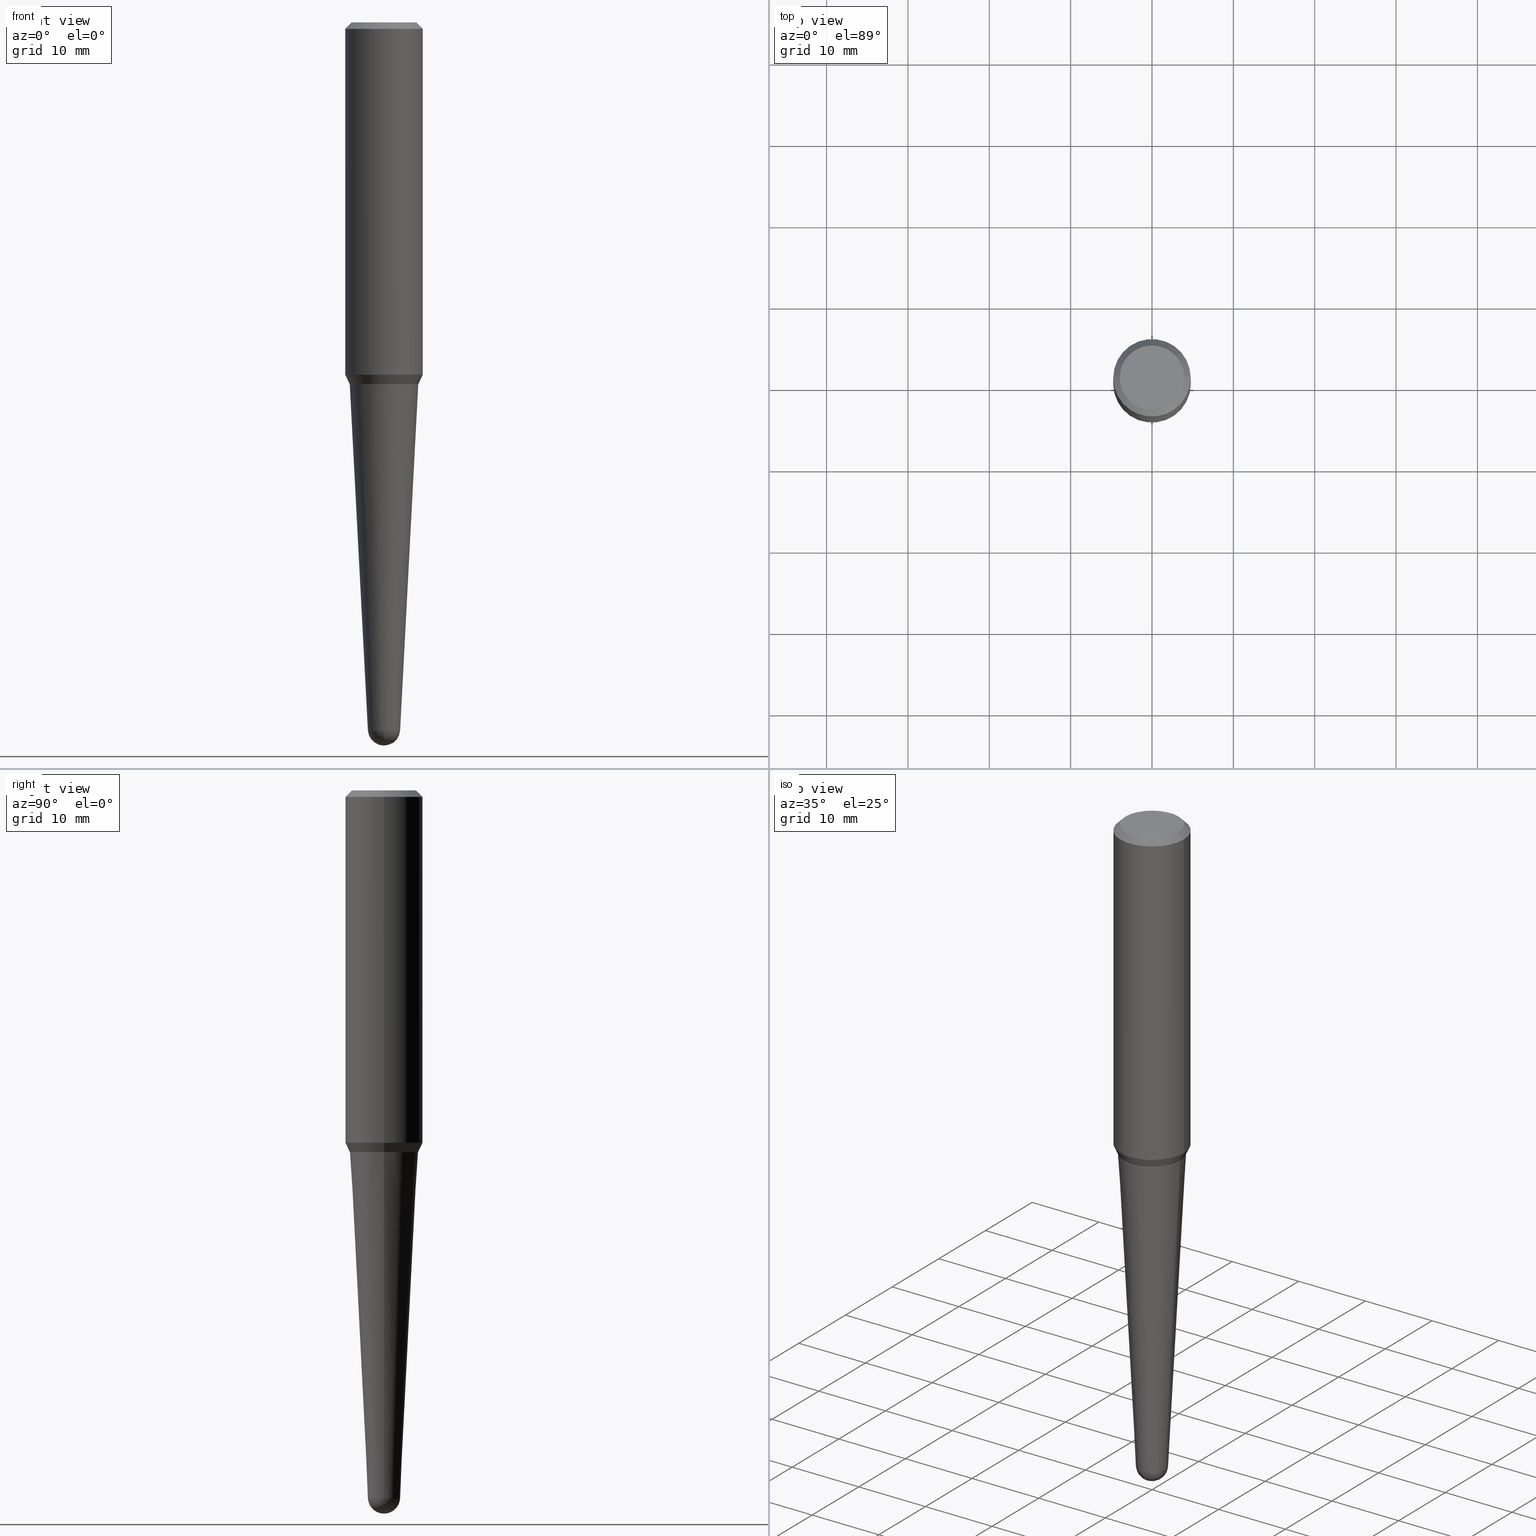
[diagram: canonical four-view strip — front | top / right | iso, engineering-drawing reading convention]
A machine part, canonical four-view strip (front | top / right | iso — engineering-drawing reading convention). The complete STEP part file that produces these views, byte-faithful:
ISO-10303-21;
HEADER;
FILE_DESCRIPTION (( 'STEP AP203' ),
    '1' );
FILE_NAME ('32422.STEP',
    '2024-03-04T15:23:26',
    ( '' ),
    ( '' ),
    'SwSTEP 2.0',
    'SolidWorks 2023',
    '' );
FILE_SCHEMA (( 'CONFIG_CONTROL_DESIGN' ));
ENDSEC;

DATA;
#1 = PLANE ( 'NONE',  #179 ) ;
#2 = CARTESIAN_POINT ( 'NONE',  ( 0.1874999999999999722, -1.395452166421010480E-15, -0.03125000000000003469 ) ) ;
#3 = AXIS2_PLACEMENT_3D ( 'NONE', #428, #66, #164 ) ;
#4 = CC_DESIGN_APPROVAL ( #336, ( #386 ) ) ;
#5 = CARTESIAN_POINT ( 'NONE',  ( 5.446219753391475755E-16, 0.07799296666432065095, -3.425987438182573896 ) ) ;
#6 = EDGE_CURVE ( 'NONE', #424, #311, #48, .T. ) ;
#7 = DIRECTION ( 'NONE',  ( 0.000000000000000000, 0.000000000000000000, 1.000000000000000000 ) ) ;
#8 = APPROVAL_ROLE ( '' ) ;
#9 = APPROVAL_STATUS ( 'not_yet_approved' ) ;
#10 = CONICAL_SURFACE ( 'NONE', #127, 0.1874999999999999722, 0.7853981633974502774 ) ;
#11 = COORDINATED_UNIVERSAL_TIME_OFFSET ( 5, 0, .BEHIND. ) ;
#12 = EDGE_CURVE ( 'NONE', #244, #202, #380, .T. ) ;
#13 = SHAPE_DEFINITION_REPRESENTATION ( #338, #21 ) ;
#14 = ADVANCED_FACE ( 'NONE', ( #192 ), #117, .F. ) ;
#15 = CARTESIAN_POINT ( 'NONE',  ( 4.278347676420896243E-29, -6.108346602306083167E-15, -1.749500000000000055 ) ) ;
#16 = ORIENTED_EDGE ( 'NONE', *, *, #79, .F. ) ;
#17 = EDGE_LOOP ( 'NONE', ( #56, #87, #241, #278 ) ) ;
#18 = EDGE_CURVE ( 'NONE', #202, #188, #358, .T. ) ;
#19 = DIRECTION ( 'NONE',  ( 2.438088387897960049E-29, -3.491481338843145188E-15, -1.000000000000000000 ) ) ;
#20 = PERSON_AND_ORGANIZATION_ROLE ( 'classification_officer' ) ;
#21 = ADVANCED_BREP_SHAPE_REPRESENTATION ( '32422', ( #305, #131, #133 ), #78 ) ;
#22 = DIRECTION ( 'NONE',  ( 1.000000000000000000, -6.982962677686266711E-15, 0.000000000000000000 ) ) ;
#23 = VERTEX_POINT ( 'NONE', #306 ) ;
#24 = EDGE_LOOP ( 'NONE', ( #384, #426, #211, #432 ) ) ;
#25 = SPHERICAL_SURFACE ( 'NONE', #55, 0.07809999999999994724 ) ;
#26 = VERTEX_POINT ( 'NONE', #263 ) ;
#27 = FACE_OUTER_BOUND ( 'NONE', #324, .T. ) ;
#28 = CONICAL_SURFACE ( 'NONE', #70, 0.1668277464057542070, 0.4363323129985716697 ) ;
#29 = EDGE_CURVE ( 'NONE', #394, #32, #147, .T. ) ;
#30 = CARTESIAN_POINT ( 'NONE',  ( -0.1658277464057546224, -4.931815337014735557E-15, -1.750000000000000000 ) ) ;
#31 = FACE_OUTER_BOUND ( 'NONE', #239, .T. ) ;
#32 = VERTEX_POINT ( 'NONE', #421 ) ;
#33 = DIRECTION ( 'NONE',  ( -2.445468806185136597E-29, 3.491481338843145583E-15, 1.000000000000000000 ) ) ;
#34 = CARTESIAN_POINT ( 'NONE',  ( -0.1663277464057547061, -4.928262623335932292E-15, -1.749999999999999556 ) ) ;
#35 = DIRECTION ( 'NONE',  ( 1.000000000000000000, -6.982962677686265922E-15, 4.876176775795935793E-29 ) ) ;
#36 = ADVANCED_FACE ( 'NONE', ( #237 ), #83, .T. ) ;
#37 = CIRCLE ( 'NONE', #116, 0.1562500000000004718 ) ;
#38 = DIRECTION ( 'NONE',  ( -2.445468806185136597E-29, 3.491481338843145583E-15, 1.000000000000000000 ) ) ;
#39 = DATE_AND_TIME ( #141, #330 ) ;
#40 = ORIENTED_EDGE ( 'NONE', *, *, #79, .T. ) ;
#41 = DIRECTION ( 'NONE',  ( -0.05233595624294384158, 3.858565720288028779E-15, 0.9986295347545738332 ) ) ;
#42 = AXIS2_PLACEMENT_3D ( 'NONE', #248, #240, #398 ) ;
#43 = CC_DESIGN_PERSON_AND_ORGANIZATION_ASSIGNMENT ( #441, #51, ( #166 ) ) ;
#44 = EDGE_CURVE ( 'NONE', #26, #311, #365, .T. ) ;
#45 = DIRECTION ( 'NONE',  ( 1.000000000000000000, -6.982962677686266711E-15, 0.000000000000000000 ) ) ;
#46 = APPROVAL ( #401, 'UNSPECIFIED' ) ;
#47 = APPROVAL_ROLE ( '' ) ;
#48 = CIRCLE ( 'NONE', #297, 0.07799296666433265524 ) ;
#49 = DIRECTION ( 'NONE',  ( -2.445468806185136597E-29, 3.491481338843145583E-15, 1.000000000000000000 ) ) ;
#50 = EDGE_CURVE ( 'NONE', #311, #23, #138, .T. ) ;
#51 = PERSON_AND_ORGANIZATION_ROLE ( 'design_supplier' ) ;
#52 = CARTESIAN_POINT ( 'NONE',  ( 0.1663277464057547061, -7.271552788390554826E-15, -1.749999999999999556 ) ) ;
#53 = CARTESIAN_POINT ( 'NONE',  ( 0.1874999999999999722, -1.418414293905023123E-15, -0.03125000000000003469 ) ) ;
#54 = ORIENTED_EDGE ( 'NONE', *, *, #383, .F. ) ;
#55 = AXIS2_PLACEMENT_3D ( 'NONE', #68, #99, #360 ) ;
#56 = ORIENTED_EDGE ( 'NONE', *, *, #44, .F. ) ;
#57 = DIRECTION ( 'NONE',  ( -2.445468806185136597E-29, 3.491481338843145583E-15, 1.000000000000000000 ) ) ;
#58 = DIRECTION ( 'NONE',  ( 1.000000000000000000, -6.982962677686263555E-15, 0.000000000000000000 ) ) ;
#59 = VERTEX_POINT ( 'NONE', #119 ) ;
#60 = EDGE_CURVE ( 'NONE', #188, #202, #418, .T. ) ;
#61 = ORIENTED_EDGE ( 'NONE', *, *, #106, .F. ) ;
#62 = DIRECTION ( 'NONE',  ( -2.445468806185136877E-29, 3.491481338843145188E-15, 1.000000000000000000 ) ) ;
#63 = AXIS2_PLACEMENT_3D ( 'NONE', #291, #152, #446 ) ;
#64 = AXIS2_PLACEMENT_3D ( 'NONE', #203, #362, #459 ) ;
#65 = ORIENTED_EDGE ( 'NONE', *, *, #60, .F. ) ;
#66 = DIRECTION ( 'NONE',  ( 2.438088387897960049E-29, -3.491481338843145188E-15, -1.000000000000000000 ) ) ;
#67 = EDGE_CURVE ( 'NONE', #458, #244, #200, .T. ) ;
#68 = CARTESIAN_POINT ( 'NONE',  ( 8.659436449305203062E-29, -1.153036080066178855E-14, -3.421899999999999942 ) ) ;
#69 = LINE ( 'NONE', #351, #392 ) ;
#70 = AXIS2_PLACEMENT_3D ( 'NONE', #219, #453, #45 ) ;
#71 = APPROVAL_PERSON_ORGANIZATION ( #337, #444, #47 ) ;
#72 = PERSON_AND_ORGANIZATION ( #296, #290 ) ;
#73 = ORIENTED_EDGE ( 'NONE', *, *, #294, .T. ) ;
#74 = CARTESIAN_POINT ( 'NONE',  ( 7.642090019328561499E-31, -1.091087918388484350E-16, -0.03125000000000003469 ) ) ;
#75 = PERSON_AND_ORGANIZATION ( #296, #290 ) ;
#76 = ADVANCED_FACE ( 'NONE', ( #259 ), #451, .T. ) ;
#77 = CARTESIAN_POINT ( 'NONE',  ( -0.07799296666433265524, -1.140759784848827963E-14, -3.425987438182573896 ) ) ;
#78 =( GEOMETRIC_REPRESENTATION_CONTEXT ( 3 ) GLOBAL_UNCERTAINTY_ASSIGNED_CONTEXT ( ( #220 ) ) GLOBAL_UNIT_ASSIGNED_CONTEXT ( ( #212, #249, #216 ) ) REPRESENTATION_CONTEXT ( 'NONE', 'WORKASPACE' ) );
#79 = EDGE_CURVE ( 'NONE', #381, #357, #443, .T. ) ;
#80 = CC_DESIGN_DATE_AND_TIME_ASSIGNMENT ( #39, #435, ( #386 ) ) ;
#81 = CARTESIAN_POINT ( 'NONE',  ( 4.169935664663897396E-29, -5.953562981677331975E-15, -1.705168209104609645 ) ) ;
#82 = DIRECTION ( 'NONE',  ( 1.000000000000000000, -6.982962677686263555E-15, 0.000000000000000000 ) ) ;
#83 = CONICAL_SURFACE ( 'NONE', #223, 0.1874999999999999722, 0.7853981633974502774 ) ;
#84 = VECTOR ( 'NONE', #354, 39.37007874015748854 ) ;
#85 = DIRECTION ( 'NONE',  ( -2.445468806185136597E-29, 3.491481338843145583E-15, 1.000000000000000000 ) ) ;
#86 = ORIENTED_EDGE ( 'NONE', *, *, #160, .T. ) ;
#87 = ORIENTED_EDGE ( 'NONE', *, *, #215, .T. ) ;
#88 = EDGE_LOOP ( 'NONE', ( #245, #367, #125, #235 ) ) ;
#89 = AXIS2_PLACEMENT_3D ( 'NONE', #445, #388, #307 ) ;
#90 = AXIS2_PLACEMENT_3D ( 'NONE', #429, #397, #363 ) ;
#91 = VERTEX_POINT ( 'NONE', #408 ) ;
#92 = CARTESIAN_POINT ( 'NONE',  ( 8.378145410457613452E-29, -1.196177120752549174E-14, -3.425987438182573896 ) ) ;
#93 = ADVANCED_FACE ( 'NONE', ( #348 ), #298, .T. ) ;
#94 = CARTESIAN_POINT ( 'NONE',  ( 0.1658277464057546224, -7.268061307051711819E-15, -1.750000000000000000 ) ) ;
#95 = ORIENTED_EDGE ( 'NONE', *, *, #44, .T. ) ;
#96 = DIRECTION ( 'NONE',  ( 1.000000000000000000, -6.982962677686263555E-15, 0.000000000000000000 ) ) ;
#97 = EDGE_CURVE ( 'NONE', #196, #394, #399, .T. ) ;
#98 = VECTOR ( 'NONE', #41, 39.37007874015748854 ) ;
#99 = DIRECTION ( 'NONE',  ( -1.000000000000000000, 6.982962677686265922E-15, -4.883557194083112901E-29 ) ) ;
#100 = ORIENTED_EDGE ( 'NONE', *, *, #12, .F. ) ;
#101 = DIRECTION ( 'NONE',  ( -2.445468806185136597E-29, 3.491481338843145583E-15, 1.000000000000000000 ) ) ;
#102 = EDGE_CURVE ( 'NONE', #458, #188, #310, .T. ) ;
#103 = VECTOR ( 'NONE', #390, 39.37007874015748143 ) ;
#104 = EDGE_LOOP ( 'NONE', ( #265, #184, #107, #198, #352 ) ) ;
#105 = CARTESIAN_POINT ( 'NONE',  ( -0.1663277464057547061, -4.925613396161822668E-15, -1.749999999999999556 ) ) ;
#106 = EDGE_CURVE ( 'NONE', #196, #186, #277, .T. ) ;
#107 = ORIENTED_EDGE ( 'NONE', *, *, #221, .F. ) ;
#108 =( LENGTH_UNIT ( ) NAMED_UNIT ( * ) SI_UNIT ( $, .METRE. ) );
#109 = PERSON_AND_ORGANIZATION ( #296, #290 ) ;
#110 = CONICAL_SURFACE ( 'NONE', #270, 0.1668277464057542070, 0.4363323129985716697 ) ;
#111 = APPROVAL_DATE_TIME ( #137, #46 ) ;
#112 = APPLICATION_CONTEXT ( 'configuration controlled 3d designs of mechanical parts and assemblies' ) ;
#113 = DIRECTION ( 'NONE',  ( -2.445468806185136597E-29, 3.491481338843145583E-15, 1.000000000000000000 ) ) ;
#114 = DIRECTION ( 'NONE',  ( -2.445468806185136597E-29, 3.491481338843145583E-15, 1.000000000000000000 ) ) ;
#115 = DATE_AND_TIME ( #373, #319 ) ;
#116 = AXIS2_PLACEMENT_3D ( 'NONE', #163, #101, #326 ) ;
#117 = PLANE ( 'NONE',  #174 ) ;
#118 = ORIENTED_EDGE ( 'NONE', *, *, #67, .T. ) ;
#119 = CARTESIAN_POINT ( 'NONE',  ( 0.1875000000000002220, -7.262868483743506194E-15, -1.705168209104609645 ) ) ;
#120 = DIRECTION ( 'NONE',  ( 1.000000000000000000, -6.982962677686266711E-15, 0.000000000000000000 ) ) ;
#121 = CARTESIAN_POINT ( 'NONE',  ( 0.07799296666433265524, -1.250639318286455540E-14, -3.425987438182573896 ) ) ;
#122 = ADVANCED_FACE ( 'NONE', ( #31 ), #406, .T. ) ;
#123 = LINE ( 'NONE', #267, #139 ) ;
#124 = EDGE_LOOP ( 'NONE', ( #162, #325, #396, #194 ) ) ;
#125 = ORIENTED_EDGE ( 'NONE', *, *, #448, .T. ) ;
#126 = CARTESIAN_POINT ( 'NONE',  ( 8.659436449305203062E-29, -1.153036080066178855E-14, -3.421899999999999942 ) ) ;
#127 = AXIS2_PLACEMENT_3D ( 'NONE', #236, #318, #356 ) ;
#128 = DIRECTION ( 'NONE',  ( 1.000000000000000000, -6.982962677686265133E-15, 0.000000000000000000 ) ) ;
#129 = CARTESIAN_POINT ( 'NONE',  ( -0.1562500000000004718, 1.145642314307903527E-15, -6.614158825850442929E-16 ) ) ;
#130 = LINE ( 'NONE', #395, #175 ) ;
#131 = MANIFOLD_SOLID_BREP ( 'Body-Move/Copy2[2]', #254 ) ;
#132 = CIRCLE ( 'NONE', #165, 0.07799296666433265524 ) ;
#133 = AXIS2_PLACEMENT_3D ( 'NONE', #173, #7, #135 ) ;
#134 = CARTESIAN_POINT ( 'NONE',  ( 4.279570410823988484E-29, -6.110092342975503093E-15, -1.749999999999999556 ) ) ;
#135 = DIRECTION ( 'NONE',  ( 1.000000000000000000, 0.000000000000000000, 0.000000000000000000 ) ) ;
#136 = EDGE_CURVE ( 'NONE', #59, #238, #209, .T. ) ;
#137 = DATE_AND_TIME ( #436, #180 ) ;
#138 = CIRCLE ( 'NONE', #143, 0.07799296666433265524 ) ;
#139 = VECTOR ( 'NONE', #234, 39.37007874015748143 ) ;
#140 = SECURITY_CLASSIFICATION ( '', '', #345 ) ;
#141 = CALENDAR_DATE ( 2024, 4, 3 ) ;
#142 = CC_DESIGN_PERSON_AND_ORGANIZATION_ASSIGNMENT ( #288, #256, ( #166 ) ) ;
#143 = AXIS2_PLACEMENT_3D ( 'NONE', #233, #320, #58 ) ;
#144 = AXIS2_PLACEMENT_3D ( 'NONE', #177, #346, #314 ) ;
#145 = DATE_AND_TIME ( #218, #457 ) ;
#146 = DIRECTION ( 'NONE',  ( 6.982962677686265922E-15, 1.000000000000000000, 0.000000000000000000 ) ) ;
#147 = LINE ( 'NONE', #153, #374 ) ;
#148 = ORIENTED_EDGE ( 'NONE', *, *, #60, .T. ) ;
#149 = ORIENTED_EDGE ( 'NONE', *, *, #205, .T. ) ;
#150 = VECTOR ( 'NONE', #217, 39.37007874015748143 ) ;
#151 = DIRECTION ( 'NONE',  ( -2.445468806185136597E-29, 3.491481338843145583E-15, 1.000000000000000000 ) ) ;
#152 = DIRECTION ( 'NONE',  ( -2.445468806185136597E-29, 3.491481338843145583E-15, 1.000000000000000000 ) ) ;
#153 = CARTESIAN_POINT ( 'NONE',  ( -0.1874999999999999722, 1.200196710227326499E-15, -0.03125000000000003469 ) ) ;
#154 = ADVANCED_FACE ( 'NONE', ( #350 ), #110, .T. ) ;
#155 = DIRECTION ( 'NONE',  ( -2.445468806185136597E-29, 3.491481338843145583E-15, 1.000000000000000000 ) ) ;
#156 = ORIENTED_EDGE ( 'NONE', *, *, #29, .T. ) ;
#157 = DIRECTION ( 'NONE',  ( -2.438088387897960049E-29, 3.491481338843145188E-15, 1.000000000000000000 ) ) ;
#158 = EDGE_LOOP ( 'NONE', ( #391, #442, #422, #149, #16 ) ) ;
#159 = CYLINDRICAL_SURFACE ( 'NONE', #64, 0.1875000000000001110 ) ;
#160 = EDGE_CURVE ( 'NONE', #244, #458, #255, .T. ) ;
#161 = DIRECTION ( 'NONE',  ( -0.4226182617406897268, 6.167240084480783969E-15, 0.9063077870366544886 ) ) ;
#162 = ORIENTED_EDGE ( 'NONE', *, *, #294, .F. ) ;
#163 = CARTESIAN_POINT ( 'NONE',  ( 1.617471908777117797E-44, -2.309321211260124338E-30, -6.614158825850365029E-16 ) ) ;
#164 = DIRECTION ( 'NONE',  ( -1.000000000000000000, 6.982962677686265922E-15, -4.876176775795935793E-29 ) ) ;
#165 = AXIS2_PLACEMENT_3D ( 'NONE', #92, #275, #96 ) ;
#166 = PRODUCT_DEFINITION_FORMATION_WITH_SPECIFIED_SOURCE ( 'ANY', '', #286, .NOT_KNOWN. ) ;
#167 = APPLICATION_PROTOCOL_DEFINITION ( 'international standard', 'config_control_design', 1994, #172 ) ;
#168 = ADVANCED_FACE ( 'NONE', ( #342 ), #28, .T. ) ;
#169 = ORIENTED_EDGE ( 'NONE', *, *, #97, .T. ) ;
#170 = PERSON_AND_ORGANIZATION_ROLE ( 'creator' ) ;
#171 = CARTESIAN_POINT ( 'NONE',  ( 4.279570410823988484E-29, -6.110092342975503093E-15, -1.749999999999999556 ) ) ;
#172 = APPLICATION_CONTEXT ( 'configuration controlled 3d designs of mechanical parts and assemblies' ) ;
#173 = CARTESIAN_POINT ( 'NONE',  ( 0.000000000000000000, 0.000000000000000000, 0.000000000000000000 ) ) ;
#174 = AXIS2_PLACEMENT_3D ( 'NONE', #455, #19, #273 ) ;
#175 = VECTOR ( 'NONE', #62, 39.37007874015748143 ) ;
#176 = LENGTH_MEASURE_WITH_UNIT ( LENGTH_MEASURE( 0.02539999999999999897 ), #108 );
#177 = CARTESIAN_POINT ( 'NONE',  ( 4.169935664663897396E-29, -5.953562981677331975E-15, -1.705168209104609645 ) ) ;
#178 = LINE ( 'NONE', #331, #150 ) ;
#179 = AXIS2_PLACEMENT_3D ( 'NONE', #387, #157, #35 ) ;
#180 = LOCAL_TIME ( 10, 23, 26.00000000000000000, #295 ) ;
#181 = CARTESIAN_POINT ( 'NONE',  ( 8.659436449305203062E-29, -1.153036080066178855E-14, -3.421899999999999942 ) ) ;
#182 = DIRECTION ( 'NONE',  ( -2.445468806185136597E-29, 3.491481338843145583E-15, 1.000000000000000000 ) ) ;
#183 = EDGE_CURVE ( 'NONE', #32, #186, #329, .T. ) ;
#184 = ORIENTED_EDGE ( 'NONE', *, *, #431, .T. ) ;
#185 = DIRECTION ( 'NONE',  ( -0.7071067811865489050, 2.468850131082271655E-15, -0.7071067811865461294 ) ) ;
#186 = VERTEX_POINT ( 'NONE', #53 ) ;
#187 = CARTESIAN_POINT ( 'NONE',  ( 4.278347676420896243E-29, -6.108346602306083167E-15, -1.749500000000000055 ) ) ;
#188 = VERTEX_POINT ( 'NONE', #266 ) ;
#189 = AXIS2_PLACEMENT_3D ( 'NONE', #81, #339, #222 ) ;
#190 = EDGE_CURVE ( 'NONE', #238, #59, #366, .T. ) ;
#191 = APPROVAL_PERSON_ORGANIZATION ( #75, #336, #402 ) ;
#192 = FACE_OUTER_BOUND ( 'NONE', #449, .T. ) ;
#193 = EDGE_LOOP ( 'NONE', ( #279, #118, #385, #65 ) ) ;
#194 = ORIENTED_EDGE ( 'NONE', *, *, #183, .F. ) ;
#195 = CARTESIAN_POINT ( 'NONE',  ( 0.1668277464057542070, -7.273298529059973963E-15, -1.749500000000000055 ) ) ;
#196 = VERTEX_POINT ( 'NONE', #456 ) ;
#197 = FACE_OUTER_BOUND ( 'NONE', #378, .T. ) ;
#198 = ORIENTED_EDGE ( 'NONE', *, *, #205, .F. ) ;
#199 = ORIENTED_EDGE ( 'NONE', *, *, #183, .T. ) ;
#200 = CIRCLE ( 'NONE', #63, 0.1663277464057547061 ) ;
#201 = CIRCLE ( 'NONE', #340, 0.1658277464057546502 ) ;
#202 = VERTEX_POINT ( 'NONE', #195 ) ;
#203 = CARTESIAN_POINT ( 'NONE',  ( -1.450455682483482035E-44, 2.070866303999251778E-30, 5.931196827434296760E-16 ) ) ;
#204 = FACE_OUTER_BOUND ( 'NONE', #17, .T. ) ;
#205 = EDGE_CURVE ( 'NONE', #424, #357, #227, .T. ) ;
#206 = APPROVAL_DATE_TIME ( #332, #336 ) ;
#207 = EDGE_CURVE ( 'NONE', #202, #59, #123, .T. ) ;
#208 = AXIS2_PLACEMENT_3D ( 'NONE', #308, #49, #225 ) ;
#209 = CIRCLE ( 'NONE', #189, 0.1875000000000002220 ) ;
#210 = CC_DESIGN_APPROVAL ( #46, ( #166 ) ) ;
#211 = ORIENTED_EDGE ( 'NONE', *, *, #136, .F. ) ;
#212 =( CONVERSION_BASED_UNIT ( 'INCH', #176 ) LENGTH_UNIT ( ) NAMED_UNIT ( #231 ) );
#213 = MECHANICAL_CONTEXT ( 'NONE', #172, 'mechanical' ) ;
#214 = CC_DESIGN_PERSON_AND_ORGANIZATION_ASSIGNMENT ( #439, #20, ( #140 ) ) ;
#215 = EDGE_CURVE ( 'NONE', #26, #91, #359, .T. ) ;
#216 =( NAMED_UNIT ( * ) SI_UNIT ( $, .STERADIAN. ) SOLID_ANGLE_UNIT ( ) );
#217 = DIRECTION ( 'NONE',  ( -2.445468806185136877E-29, 3.491481338843145188E-15, 1.000000000000000000 ) ) ;
#218 = CALENDAR_DATE ( 2024, 4, 3 ) ;
#219 = CARTESIAN_POINT ( 'NONE',  ( 4.278347676420896243E-29, -6.108346602306083167E-15, -1.749500000000000055 ) ) ;
#220 = UNCERTAINTY_MEASURE_WITH_UNIT (LENGTH_MEASURE( 1.000000000000000082E-05 ), #212, 'distance_accuracy_value', 'NONE');
#221 = EDGE_CURVE ( 'NONE', #357, #381, #201, .T. ) ;
#222 = DIRECTION ( 'NONE',  ( 1.000000000000000000, -6.982962677686265133E-15, 0.000000000000000000 ) ) ;
#223 = AXIS2_PLACEMENT_3D ( 'NONE', #303, #229, #269 ) ;
#224 = AXIS2_PLACEMENT_3D ( 'NONE', #382, #182, #377 ) ;
#225 = DIRECTION ( 'NONE',  ( 1.000000000000000000, -6.982962677686270655E-15, 0.000000000000000000 ) ) ;
#226 = ORIENTED_EDGE ( 'NONE', *, *, #160, .F. ) ;
#227 = LINE ( 'NONE', #121, #84 ) ;
#228 = COORDINATED_UNIVERSAL_TIME_OFFSET ( 5, 0, .BEHIND. ) ;
#229 = DIRECTION ( 'NONE',  ( 2.445468806185136597E-29, -3.491481338843145583E-15, -1.000000000000000000 ) ) ;
#230 = ORIENTED_EDGE ( 'NONE', *, *, #136, .T. ) ;
#231 = DIMENSIONAL_EXPONENTS ( 1.000000000000000000, 0.000000000000000000, 0.000000000000000000, 0.000000000000000000, 0.000000000000000000, 0.000000000000000000, 0.000000000000000000 ) ;
#232 = VECTOR ( 'NONE', #433, 39.37007874015748143 ) ;
#233 = CARTESIAN_POINT ( 'NONE',  ( 8.378145410457613452E-29, -1.196177120752549174E-14, -3.425987438182573896 ) ) ;
#234 = DIRECTION ( 'NONE',  ( 0.4226182617406897268, 2.132291770428246021E-16, 0.9063077870366544886 ) ) ;
#235 = ORIENTED_EDGE ( 'NONE', *, *, #29, .F. ) ;
#236 = CARTESIAN_POINT ( 'NONE',  ( 7.642090019328561499E-31, -1.091087918388484350E-16, -0.03125000000000003469 ) ) ;
#237 = FACE_OUTER_BOUND ( 'NONE', #88, .T. ) ;
#238 = VERTEX_POINT ( 'NONE', #425 ) ;
#239 = EDGE_LOOP ( 'NONE', ( #86, #309, #287, #100 ) ) ;
#240 = DIRECTION ( 'NONE',  ( -2.445468806185136597E-29, 3.491481338843145583E-15, 1.000000000000000000 ) ) ;
#241 = ORIENTED_EDGE ( 'NONE', *, *, #353, .F. ) ;
#242 = CARTESIAN_POINT ( 'NONE',  ( 8.378145410457613452E-29, -1.196177120752549174E-14, -3.425987438182573896 ) ) ;
#243 = AXIS2_PLACEMENT_3D ( 'NONE', #134, #430, #128 ) ;
#244 = VERTEX_POINT ( 'NONE', #280 ) ;
#245 = ORIENTED_EDGE ( 'NONE', *, *, #97, .F. ) ;
#246 = PLANE ( 'NONE',  #3 ) ;
#247 = CC_DESIGN_PERSON_AND_ORGANIZATION_ASSIGNMENT ( #335, #170, ( #386 ) ) ;
#248 = CARTESIAN_POINT ( 'NONE',  ( 8.378145410457613452E-29, -1.196177120752549174E-14, -3.425987438182573896 ) ) ;
#249 =( NAMED_UNIT ( * ) PLANE_ANGLE_UNIT ( ) SI_UNIT ( $, .RADIAN. ) );
#250 = CONICAL_SURFACE ( 'NONE', #243, 0.1663277464057547061, 0.7853981633973459164 ) ;
#251 = PRODUCT_RELATED_PRODUCT_CATEGORY ( 'detail', '', ( #286 ) ) ;
#252 = APPLICATION_PROTOCOL_DEFINITION ( 'international standard', 'config_control_design', 1994, #112 ) ;
#253 = LINE ( 'NONE', #77, #98 ) ;
#254 = CLOSED_SHELL ( 'NONE', ( #36, #343, #168, #122, #258, #369, #154, #400, #299, #14 ) ) ;
#255 = CIRCLE ( 'NONE', #224, 0.1663277464057547061 ) ;
#256 = PERSON_AND_ORGANIZATION_ROLE ( 'creator' ) ;
#257 = DIRECTION ( 'NONE',  ( 1.000000000000000000, -6.982962677686265133E-15, 0.000000000000000000 ) ) ;
#258 = ADVANCED_FACE ( 'NONE', ( #197 ), #1, .F. ) ;
#259 = FACE_OUTER_BOUND ( 'NONE', #321, .T. ) ;
#260 = DIRECTION ( 'NONE',  ( 1.000000000000000000, -6.982962677686266711E-15, 0.000000000000000000 ) ) ;
#261 = AXIS2_PLACEMENT_3D ( 'NONE', #242, #33, #389 ) ;
#262 = DATE_TIME_ROLE ( 'classification_date' ) ;
#263 = CARTESIAN_POINT ( 'NONE',  ( 8.853766987427507370E-29, -1.179826324747476745E-14, -3.500000000000000000 ) ) ;
#264 = EDGE_LOOP ( 'NONE', ( #271, #40 ) ) ;
#265 = ORIENTED_EDGE ( 'NONE', *, *, #50, .T. ) ;
#266 = CARTESIAN_POINT ( 'NONE',  ( -0.1668277464057542070, -4.922964168987714623E-15, -1.749500000000000055 ) ) ;
#267 = CARTESIAN_POINT ( 'NONE',  ( 0.1668277464057542070, -7.273298529059973963E-15, -1.749500000000000055 ) ) ;
#268 = COORDINATED_UNIVERSAL_TIME_OFFSET ( 5, 0, .BEHIND. ) ;
#269 = DIRECTION ( 'NONE',  ( -1.000000000000000000, 6.982962677686266711E-15, 0.000000000000000000 ) ) ;
#270 = AXIS2_PLACEMENT_3D ( 'NONE', #187, #155, #120 ) ;
#271 = ORIENTED_EDGE ( 'NONE', *, *, #221, .T. ) ;
#272 = CYLINDRICAL_SURFACE ( 'NONE', #304, 0.1875000000000001110 ) ;
#273 = DIRECTION ( 'NONE',  ( -1.000000000000000000, 6.982962677686265922E-15, -4.876176775795935793E-29 ) ) ;
#274 = ORIENTED_EDGE ( 'NONE', *, *, #372, .T. ) ;
#275 = DIRECTION ( 'NONE',  ( -2.445468806185136597E-29, 3.491481338843145583E-15, 1.000000000000000000 ) ) ;
#276 = EDGE_CURVE ( 'NONE', #91, #424, #132, .T. ) ;
#277 = LINE ( 'NONE', #2, #103 ) ;
#278 = ORIENTED_EDGE ( 'NONE', *, *, #50, .F. ) ;
#279 = ORIENTED_EDGE ( 'NONE', *, *, #102, .F. ) ;
#280 = CARTESIAN_POINT ( 'NONE',  ( 0.1663277464057547061, -7.271552788390554826E-15, -1.749999999999999556 ) ) ;
#281 = ORIENTED_EDGE ( 'NONE', *, *, #6, .F. ) ;
#282 = DIRECTION ( 'NONE',  ( -1.000000000000000000, 7.105427357601001070E-15, -4.926315508542082329E-29 ) ) ;
#283 = AXIS2_PLACEMENT_3D ( 'NONE', #15, #151, #22 ) ;
#284 = ADVANCED_FACE ( 'NONE', ( #328 ), #246, .F. ) ;
#285 = CARTESIAN_POINT ( 'NONE',  ( 4.279570410823988484E-29, -6.110092342975504671E-15, -1.750000000000000000 ) ) ;
#286 = PRODUCT ( '32422', '32422', '', ( #213 ) ) ;
#287 = ORIENTED_EDGE ( 'NONE', *, *, #18, .F. ) ;
#288 = PERSON_AND_ORGANIZATION ( #296, #290 ) ;
#289 = AXIS2_PLACEMENT_3D ( 'NONE', #301, #114, #260 ) ;
#290 = ORGANIZATION ( 'UNSPECIFIED', 'UNSPECIFIED', '' ) ;
#291 = CARTESIAN_POINT ( 'NONE',  ( 4.279570410823988484E-29, -6.110092342975503093E-15, -1.749999999999999556 ) ) ;
#292 = COORDINATED_UNIVERSAL_TIME_OFFSET ( 5, 0, .BEHIND. ) ;
#293 = DESIGN_CONTEXT ( 'detailed design', #112, 'design' ) ;
#294 = EDGE_CURVE ( 'NONE', #238, #32, #130, .T. ) ;
#295 = COORDINATED_UNIVERSAL_TIME_OFFSET ( 5, 0, .BEHIND. ) ;
#296 = PERSON ( 'UNSPECIFIED', 'UNSPECIFIED', 'UNSPECIFIED', ('UNSPECIFIED'), ('UNSPECIFIED'), ('UNSPECIFIED') ) ;
#297 = AXIS2_PLACEMENT_3D ( 'NONE', #327, #85, #349 ) ;
#298 = CONICAL_SURFACE ( 'NONE', #376, 0.07799296666433265524, 0.05235987755982988989 ) ;
#299 = ADVANCED_FACE ( 'NONE', ( #462 ), #10, .T. ) ;
#300 = DIRECTION ( 'NONE',  ( -2.445468806185136597E-29, 3.491481338843145583E-15, 1.000000000000000000 ) ) ;
#301 = CARTESIAN_POINT ( 'NONE',  ( 7.642090019328561499E-31, -1.091087918388484350E-16, -0.03125000000000003469 ) ) ;
#302 = APPROVAL_DATE_TIME ( #145, #444 ) ;
#303 = CARTESIAN_POINT ( 'NONE',  ( 7.642090019328561499E-31, -1.091087918388484350E-16, -0.03125000000000003469 ) ) ;
#304 = AXIS2_PLACEMENT_3D ( 'NONE', #323, #420, #407 ) ;
#305 = MANIFOLD_SOLID_BREP ( 'Body-Move/Copy2[1]', #437 ) ;
#306 = CARTESIAN_POINT ( 'NONE',  ( -0.07799296666433265524, -8.169706592751506412E-15, -3.425987438182573896 ) ) ;
#307 = DIRECTION ( 'NONE',  ( 6.982962677686266711E-15, 1.000000000000000000, 0.000000000000000000 ) ) ;
#308 = CARTESIAN_POINT ( 'NONE',  ( 4.279570410823988484E-29, -6.110092342975504671E-15, -1.750000000000000000 ) ) ;
#309 = ORIENTED_EDGE ( 'NONE', *, *, #102, .T. ) ;
#310 = LINE ( 'NONE', #34, #232 ) ;
#311 = VERTEX_POINT ( 'NONE', #5 ) ;
#312 = FACE_OUTER_BOUND ( 'NONE', #104, .T. ) ;
#313 = ADVANCED_FACE ( 'NONE', ( #204 ), #25, .T. ) ;
#314 = DIRECTION ( 'NONE',  ( 1.000000000000000000, -6.982962677686265133E-15, 0.000000000000000000 ) ) ;
#315 = VECTOR ( 'NONE', #344, 39.37007874015748143 ) ;
#316 = CIRCLE ( 'NONE', #261, 0.07799296666433265524 ) ;
#317 = ORIENTED_EDGE ( 'NONE', *, *, #276, .F. ) ;
#318 = DIRECTION ( 'NONE',  ( 2.445468806185136597E-29, -3.491481338843145583E-15, -1.000000000000000000 ) ) ;
#319 = LOCAL_TIME ( 10, 23, 26.00000000000000000, #268 ) ;
#320 = DIRECTION ( 'NONE',  ( -2.445468806185136597E-29, 3.491481338843145583E-15, 1.000000000000000000 ) ) ;
#321 = EDGE_LOOP ( 'NONE', ( #322, #95, #281, #317 ) ) ;
#322 = ORIENTED_EDGE ( 'NONE', *, *, #215, .F. ) ;
#323 = CARTESIAN_POINT ( 'NONE',  ( -1.450455682483482035E-44, 2.070866303999251778E-30, 5.931196827434296760E-16 ) ) ;
#324 = EDGE_LOOP ( 'NONE', ( #230, #73, #452, #461 ) ) ;
#325 = ORIENTED_EDGE ( 'NONE', *, *, #190, .T. ) ;
#326 = DIRECTION ( 'NONE',  ( 1.000000000000000000, -6.982962677686266711E-15, 4.891558762689330142E-29 ) ) ;
#327 = CARTESIAN_POINT ( 'NONE',  ( 8.378145410457613452E-29, -1.196177120752549174E-14, -3.425987438182573896 ) ) ;
#328 = FACE_OUTER_BOUND ( 'NONE', #264, .T. ) ;
#329 = CIRCLE ( 'NONE', #289, 0.1874999999999999722 ) ;
#330 = LOCAL_TIME ( 10, 23, 26.00000000000000000, #11 ) ;
#331 = CARTESIAN_POINT ( 'NONE',  ( 0.1875000000000001110, -1.309305502066173628E-15, 5.931196827434387479E-16 ) ) ;
#332 = DATE_AND_TIME ( #368, #419 ) ;
#333 = CARTESIAN_POINT ( 'NONE',  ( 0.07799296666433265524, -9.887227244958132819E-15, -3.425987438182573896 ) ) ;
#334 = AXIS2_PLACEMENT_3D ( 'NONE', #181, #409, #146 ) ;
#335 = PERSON_AND_ORGANIZATION ( #296, #290 ) ;
#336 = APPROVAL ( #9, 'UNSPECIFIED' ) ;
#337 = PERSON_AND_ORGANIZATION ( #296, #290 ) ;
#338 = PRODUCT_DEFINITION_SHAPE ( 'NONE', 'NONE',  #386 ) ;
#339 = DIRECTION ( 'NONE',  ( -2.445468806185136597E-29, 3.491481338843145583E-15, 1.000000000000000000 ) ) ;
#340 = AXIS2_PLACEMENT_3D ( 'NONE', #285, #57, #423 ) ;
#341 = CC_DESIGN_APPROVAL ( #444, ( #140 ) ) ;
#342 = FACE_OUTER_BOUND ( 'NONE', #24, .T. ) ;
#343 = ADVANCED_FACE ( 'NONE', ( #27 ), #159, .T. ) ;
#344 = DIRECTION ( 'NONE',  ( 0.7071067811864750752, -2.468850131081498176E-15, 0.7071067811866199593 ) ) ;
#345 = SECURITY_CLASSIFICATION_LEVEL ( 'unclassified' ) ;
#346 = DIRECTION ( 'NONE',  ( -2.445468806185136597E-29, 3.491481338843145583E-15, 1.000000000000000000 ) ) ;
#347 = APPROVAL_STATUS ( 'not_yet_approved' ) ;
#348 = FACE_OUTER_BOUND ( 'NONE', #158, .T. ) ;
#349 = DIRECTION ( 'NONE',  ( 1.000000000000000000, -6.982962677686263555E-15, 0.000000000000000000 ) ) ;
#350 = FACE_OUTER_BOUND ( 'NONE', #414, .T. ) ;
#351 = CARTESIAN_POINT ( 'NONE',  ( -0.1668277464057542070, -4.922964168987714623E-15, -1.749500000000000055 ) ) ;
#352 = ORIENTED_EDGE ( 'NONE', *, *, #6, .T. ) ;
#353 = EDGE_CURVE ( 'NONE', #23, #91, #316, .T. ) ;
#354 = DIRECTION ( 'NONE',  ( 0.05233595624294384158, 3.121236355867708811E-15, 0.9986295347545738332 ) ) ;
#355 = ORIENTED_EDGE ( 'NONE', *, *, #67, .F. ) ;
#356 = DIRECTION ( 'NONE',  ( -1.000000000000000000, 6.982962677686266711E-15, 0.000000000000000000 ) ) ;
#357 = VERTEX_POINT ( 'NONE', #94 ) ;
#358 = CIRCLE ( 'NONE', #283, 0.1668277464057542070 ) ;
#359 = CIRCLE ( 'NONE', #411, 0.07809999999999994724 ) ;
#360 = DIRECTION ( 'NONE',  ( 6.982962677686265922E-15, 1.000000000000000000, 0.000000000000000000 ) ) ;
#361 = CC_DESIGN_SECURITY_CLASSIFICATION ( #140, ( #166 ) ) ;
#362 = DIRECTION ( 'NONE',  ( -2.445468806185136597E-29, 3.491481338843145583E-15, 1.000000000000000000 ) ) ;
#363 = DIRECTION ( 'NONE',  ( 1.000000000000000000, -6.982962677686266711E-15, 4.891558762689330142E-29 ) ) ;
#364 = FACE_OUTER_BOUND ( 'NONE', #193, .T. ) ;
#365 = CIRCLE ( 'NONE', #89, 0.07809999999999994724 ) ;
#366 = CIRCLE ( 'NONE', #144, 0.1875000000000002220 ) ;
#367 = ORIENTED_EDGE ( 'NONE', *, *, #106, .T. ) ;
#368 = CALENDAR_DATE ( 2024, 4, 3 ) ;
#369 = ADVANCED_FACE ( 'NONE', ( #364 ), #250, .T. ) ;
#370 = CONICAL_SURFACE ( 'NONE', #42, 0.07799296666433265524, 0.05235987755982988989 ) ;
#371 = DIRECTION ( 'NONE',  ( 1.000000000000000000, -6.982962677686266711E-15, 0.000000000000000000 ) ) ;
#372 = EDGE_CURVE ( 'NONE', #394, #196, #37, .T. ) ;
#373 = CALENDAR_DATE ( 2024, 4, 3 ) ;
#374 = VECTOR ( 'NONE', #185, 39.37007874015748143 ) ;
#375 = ADVANCED_FACE ( 'NONE', ( #312 ), #370, .T. ) ;
#376 = AXIS2_PLACEMENT_3D ( 'NONE', #417, #300, #82 ) ;
#377 = DIRECTION ( 'NONE',  ( 1.000000000000000000, -6.982962677686265133E-15, 0.000000000000000000 ) ) ;
#378 = EDGE_LOOP ( 'NONE', ( #226, #355 ) ) ;
#379 = ORIENTED_EDGE ( 'NONE', *, *, #207, .T. ) ;
#380 = LINE ( 'NONE', #52, #315 ) ;
#381 = VERTEX_POINT ( 'NONE', #30 ) ;
#382 = CARTESIAN_POINT ( 'NONE',  ( 4.279570410823988484E-29, -6.110092342975503093E-15, -1.749999999999999556 ) ) ;
#383 = EDGE_CURVE ( 'NONE', #188, #238, #69, .T. ) ;
#384 = ORIENTED_EDGE ( 'NONE', *, *, #18, .T. ) ;
#385 = ORIENTED_EDGE ( 'NONE', *, *, #12, .T. ) ;
#386 = PRODUCT_DEFINITION ( 'UNKNOWN', '', #166, #293 ) ;
#387 = CARTESIAN_POINT ( 'NONE',  ( 8.293775826086788448E-29, -3.615217139357610572E-16, -1.750000000000000000 ) ) ;
#388 = DIRECTION ( 'NONE',  ( 1.000000000000000000, -6.982962677686265922E-15, 4.883557194083112340E-29 ) ) ;
#389 = DIRECTION ( 'NONE',  ( 1.000000000000000000, -6.982962677686263555E-15, 0.000000000000000000 ) ) ;
#390 = DIRECTION ( 'NONE',  ( 0.7071067811865489050, -7.319954787623260779E-15, -0.7071067811865461294 ) ) ;
#391 = ORIENTED_EDGE ( 'NONE', *, *, #431, .F. ) ;
#392 = VECTOR ( 'NONE', #161, 39.37007874015748143 ) ;
#393 = DIRECTION ( 'NONE',  ( -7.105427357601000281E-15, -1.000000000000000000, 0.000000000000000000 ) ) ;
#394 = VERTEX_POINT ( 'NONE', #129 ) ;
#395 = CARTESIAN_POINT ( 'NONE',  ( -0.1875000000000001110, 1.332267629550190807E-15, 5.931196827434205055E-16 ) ) ;
#396 = ORIENTED_EDGE ( 'NONE', *, *, #440, .T. ) ;
#397 = DIRECTION ( 'NONE',  ( -2.445468806185136597E-29, 3.491481338843145583E-15, 1.000000000000000000 ) ) ;
#398 = DIRECTION ( 'NONE',  ( 1.000000000000000000, -6.982962677686263555E-15, 0.000000000000000000 ) ) ;
#399 = CIRCLE ( 'NONE', #90, 0.1562500000000004718 ) ;
#400 = ADVANCED_FACE ( 'NONE', ( #454 ), #272, .T. ) ;
#401 = APPROVAL_STATUS ( 'not_yet_approved' ) ;
#402 = APPROVAL_ROLE ( '' ) ;
#403 = CC_DESIGN_DATE_AND_TIME_ASSIGNMENT ( #115, #262, ( #140 ) ) ;
#404 = DIRECTION ( 'NONE',  ( -2.445468806185136597E-29, 3.491481338843145583E-15, 1.000000000000000000 ) ) ;
#405 = AXIS2_PLACEMENT_3D ( 'NONE', #171, #404, #257 ) ;
#406 = CONICAL_SURFACE ( 'NONE', #405, 0.1663277464057547061, 0.7853981633973459164 ) ;
#407 = DIRECTION ( 'NONE',  ( 1.000000000000000000, -6.982962677686266711E-15, 4.852736867747363404E-29 ) ) ;
#408 = CARTESIAN_POINT ( 'NONE',  ( -5.541733590371250335E-16, -0.07799296666434415992, -3.425987438182573896 ) ) ;
#409 = DIRECTION ( 'NONE',  ( -1.000000000000000000, 6.982962677686265922E-15, -4.883557194083112901E-29 ) ) ;
#410 = AXIS2_PLACEMENT_3D ( 'NONE', #413, #113, #450 ) ;
#411 = AXIS2_PLACEMENT_3D ( 'NONE', #126, #282, #393 ) ;
#412 = APPROVAL_PERSON_ORGANIZATION ( #109, #46, #8 ) ;
#413 = CARTESIAN_POINT ( 'NONE',  ( 4.278347676420896243E-29, -6.108346602306083167E-15, -1.749500000000000055 ) ) ;
#414 = EDGE_LOOP ( 'NONE', ( #54, #148, #379, #447 ) ) ;
#415 = EDGE_LOOP ( 'NONE', ( #61, #460, #156, #199 ) ) ;
#416 = CC_DESIGN_PERSON_AND_ORGANIZATION_ASSIGNMENT ( #72, #434, ( #286 ) ) ;
#417 = CARTESIAN_POINT ( 'NONE',  ( 8.378145410457613452E-29, -1.196177120752549174E-14, -3.425987438182573896 ) ) ;
#418 = CIRCLE ( 'NONE', #410, 0.1668277464057542070 ) ;
#419 = LOCAL_TIME ( 10, 23, 26.00000000000000000, #292 ) ;
#420 = DIRECTION ( 'NONE',  ( -2.445468806185136597E-29, 3.491481338843145583E-15, 1.000000000000000000 ) ) ;
#421 = CARTESIAN_POINT ( 'NONE',  ( -0.1874999999999999722, -1.699068257207900914E-15, -0.03125000000000003469 ) ) ;
#422 = ORIENTED_EDGE ( 'NONE', *, *, #276, .T. ) ;
#423 = DIRECTION ( 'NONE',  ( 1.000000000000000000, -6.982962677686270655E-15, 0.000000000000000000 ) ) ;
#424 = VERTEX_POINT ( 'NONE', #333 ) ;
#425 = CARTESIAN_POINT ( 'NONE',  ( -0.1875000000000002220, -4.621295352127141759E-15, -1.705168209104609645 ) ) ;
#426 = ORIENTED_EDGE ( 'NONE', *, *, #383, .T. ) ;
#427 = AXIS2_PLACEMENT_3D ( 'NONE', #74, #38, #371 ) ;
#428 = CARTESIAN_POINT ( 'NONE',  ( 4.279570410823988484E-29, -6.110092342975504671E-15, -1.750000000000000000 ) ) ;
#429 = CARTESIAN_POINT ( 'NONE',  ( 1.617471908777117797E-44, -2.309321211260124338E-30, -6.614158825850365029E-16 ) ) ;
#430 = DIRECTION ( 'NONE',  ( -2.445468806185136597E-29, 3.491481338843145583E-15, 1.000000000000000000 ) ) ;
#431 = EDGE_CURVE ( 'NONE', #23, #381, #253, .T. ) ;
#432 = ORIENTED_EDGE ( 'NONE', *, *, #207, .F. ) ;
#433 = DIRECTION ( 'NONE',  ( -0.7071067811864750752, 7.493145998870092258E-15, 0.7071067811866199593 ) ) ;
#434 = PERSON_AND_ORGANIZATION_ROLE ( 'design_owner' ) ;
#435 = DATE_TIME_ROLE ( 'creation_date' ) ;
#436 = CALENDAR_DATE ( 2024, 4, 3 ) ;
#437 = CLOSED_SHELL ( 'NONE', ( #375, #313, #76, #93, #284 ) ) ;
#438 = CIRCLE ( 'NONE', #427, 0.1874999999999999722 ) ;
#439 = PERSON_AND_ORGANIZATION ( #296, #290 ) ;
#440 = EDGE_CURVE ( 'NONE', #59, #186, #178, .T. ) ;
#441 = PERSON_AND_ORGANIZATION ( #296, #290 ) ;
#442 = ORIENTED_EDGE ( 'NONE', *, *, #353, .T. ) ;
#443 = CIRCLE ( 'NONE', #208, 0.1658277464057546502 ) ;
#444 = APPROVAL ( #347, 'UNSPECIFIED' ) ;
#445 = CARTESIAN_POINT ( 'NONE',  ( 8.659436449305203062E-29, -1.153036080066178855E-14, -3.421899999999999942 ) ) ;
#446 = DIRECTION ( 'NONE',  ( 1.000000000000000000, -6.982962677686265133E-15, 0.000000000000000000 ) ) ;
#447 = ORIENTED_EDGE ( 'NONE', *, *, #190, .F. ) ;
#448 = EDGE_CURVE ( 'NONE', #186, #32, #438, .T. ) ;
#449 = EDGE_LOOP ( 'NONE', ( #274, #169 ) ) ;
#450 = DIRECTION ( 'NONE',  ( 1.000000000000000000, -6.982962677686266711E-15, 0.000000000000000000 ) ) ;
#451 = SPHERICAL_SURFACE ( 'NONE', #334, 0.07809999999999994724 ) ;
#452 = ORIENTED_EDGE ( 'NONE', *, *, #448, .F. ) ;
#453 = DIRECTION ( 'NONE',  ( -2.445468806185136597E-29, 3.491481338843145583E-15, 1.000000000000000000 ) ) ;
#454 = FACE_OUTER_BOUND ( 'NONE', #124, .T. ) ;
#455 = CARTESIAN_POINT ( 'NONE',  ( 8.087359543885587740E-45, -1.154660605630061818E-30, -3.307079412925182022E-16 ) ) ;
#456 = CARTESIAN_POINT ( 'NONE',  ( 0.1562500000000004718, -1.233702489286409101E-15, -6.614158825850284171E-16 ) ) ;
#457 = LOCAL_TIME ( 10, 23, 26.00000000000000000, #228 ) ;
#458 = VERTEX_POINT ( 'NONE', #105 ) ;
#459 = DIRECTION ( 'NONE',  ( 1.000000000000000000, -6.982962677686266711E-15, 4.852736867747363404E-29 ) ) ;
#460 = ORIENTED_EDGE ( 'NONE', *, *, #372, .F. ) ;
#461 = ORIENTED_EDGE ( 'NONE', *, *, #440, .F. ) ;
#462 = FACE_OUTER_BOUND ( 'NONE', #415, .T. ) ;
ENDSEC;
END-ISO-10303-21;
